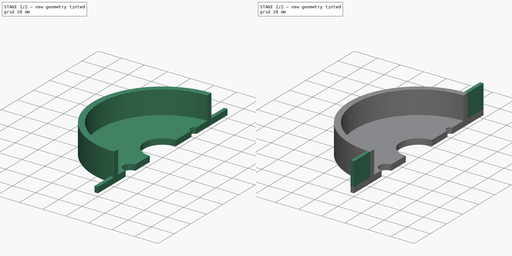
[diagram: build sequence overview — one tinted view per stage of 2, left to right]
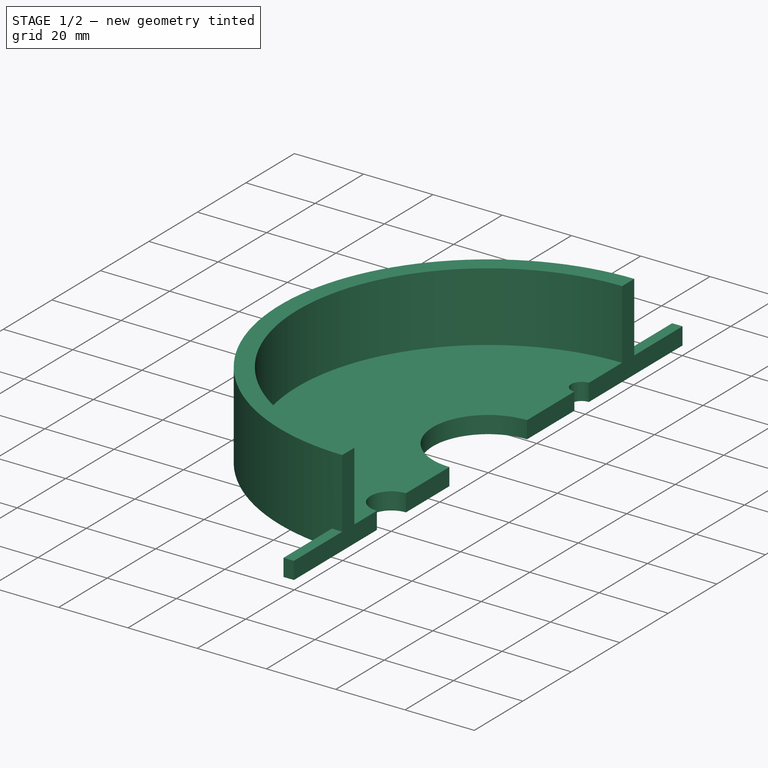
[diagram: stage 1 of 2 — iso view after this stage's code; geometry added in this stage tinted green]
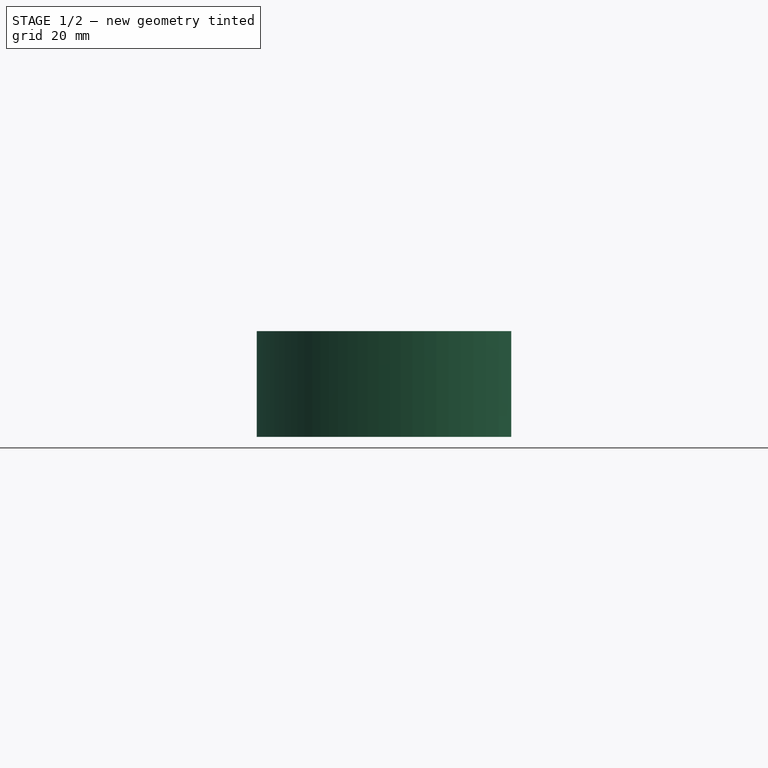
[diagram: stage 1 of 2 — front view after this stage's code; geometry added in this stage tinted green]
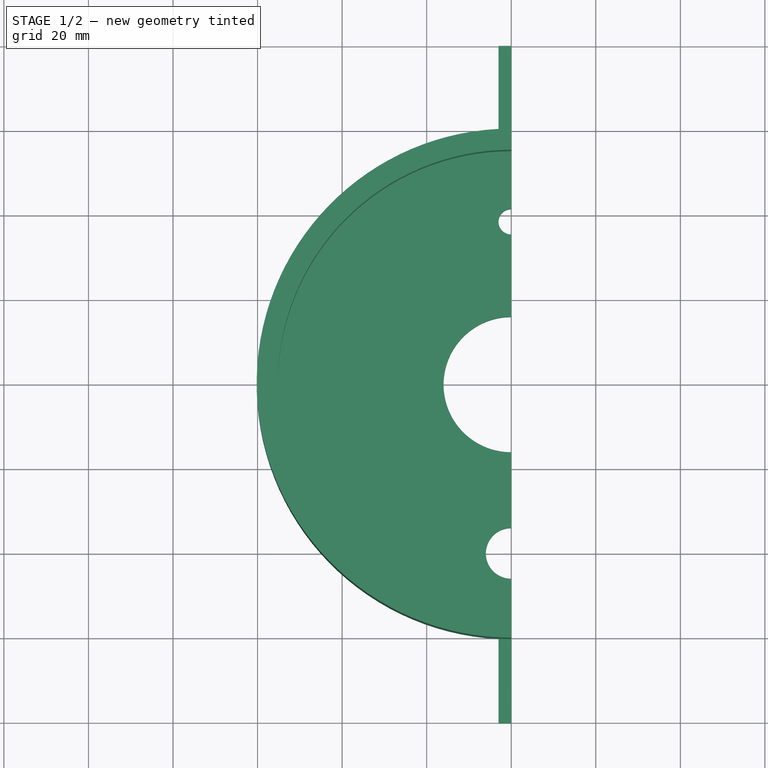
[diagram: stage 1 of 2 — top view after this stage's code; geometry added in this stage tinted green]
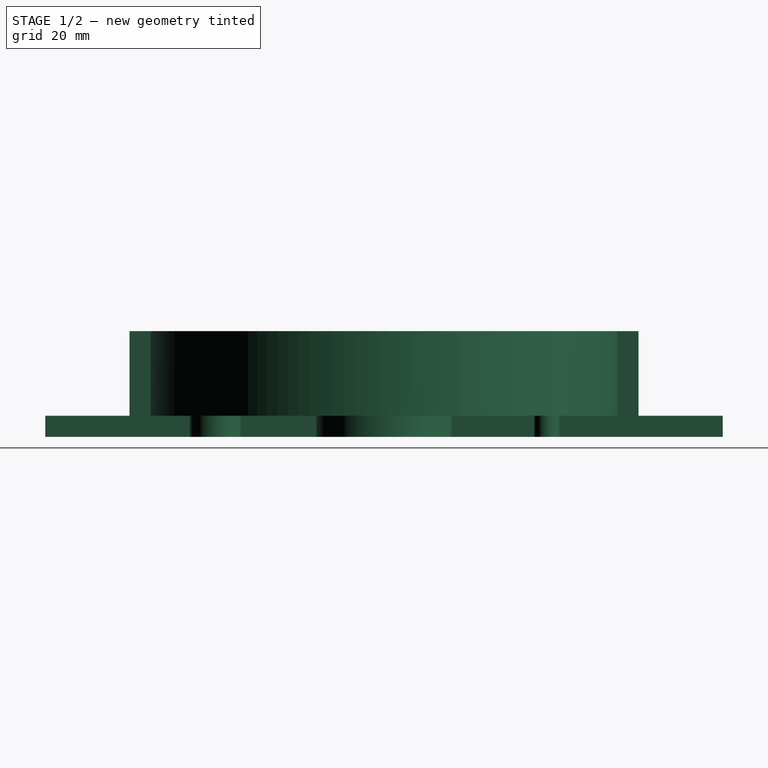
[diagram: stage 1 of 2 — right view after this stage's code; geometry added in this stage tinted green]
FCSTD DOCUMENT  (FreeCAD 1.1R14555 (Git shallow))
Label: Cap 110
License: All rights reserved
LicenseURL: https://en.wikipedia.org/wiki/All_rights_reserved
objects: PartDesign::Pad×4, Sketcher::SketchObject×3, App::Point×1, PartDesign::Body×1
note: 19 computed .brp shape members not serialized (recipe doc carries the construction recipe); baked Part::Feature solids carry a one-line shape summary decoded from their .brp

FEATURE [App::Point] Origin001
  Role = Origin
FEATURE [Sketcher::SketchObject] Sketch
  ArcFitTolerance = 1e-06
  AttachmentSupport = -> [Origin]
  ExternalTypes = [0]
  FullyConstrained = false
  MakeInternals = false
  MapMode = 5
  expr: Constraints[1] = 110 / 2 + 0.2 + 5
  expr: Constraints[5] = 32 / 2
  sketch-geometry (12):
    g0: ArcOfCircle CenterX=0 CenterY=0 CenterZ=0 NormalX=0 NormalY=0 NormalZ=1 AngleXU=0 Radius=60.2 StartAngle=1.62065 EndAngle=4.66253
    g1: ArcOfCircle CenterX=0 CenterY=0 CenterZ=0 NormalX=0 NormalY=0 NormalZ=1 AngleXU=0 Radius=16 StartAngle=1.5708 EndAngle=4.71239
    g2: LineSegment StartX=-6e-16 StartY=35.5076 StartZ=0 EndX=1e-15 EndY=16 EndZ=0
    g3: LineSegment StartX=-2.9e-15 StartY=-16 StartZ=0 EndX=4e-16 EndY=-33.9212 EndZ=0
    g4: LineSegment StartX=-3 StartY=-60.1252 StartZ=0 EndX=-3 EndY=-80.1252 EndZ=0
    g5: LineSegment StartX=-3 StartY=-80.1252 StartZ=0 EndX=0 EndY=-80.1252 EndZ=0
    g6: LineSegment StartX=-1.1e-15 StartY=-45.9212 StartZ=0 EndX=0 EndY=-80.1252 EndZ=0
    g7: LineSegment StartX=-3 StartY=60.1252 StartZ=0 EndX=-3 EndY=80.1252 EndZ=0
    g8: LineSegment StartX=-3 StartY=80.1252 StartZ=0 EndX=0 EndY=80.1252 EndZ=0
    g9: LineSegment StartX=0 StartY=80.1252 StartZ=0 EndX=2e-16 EndY=41.5076 EndZ=0
    g10: ArcOfCircle CenterX=0 CenterY=38.5076 CenterZ=0 NormalX=0 NormalY=0 NormalZ=1 AngleXU=0 Radius=3 StartAngle=1.5708 EndAngle=4.71239
    g11: ArcOfCircle CenterX=0 CenterY=-39.9212 CenterZ=0 NormalX=0 NormalY=0 NormalZ=1 AngleXU=0 Radius=6 StartAngle=1.5708 EndAngle=4.71239
  constraints (36):
    c: Coincident(g0,g-1)
    c: Radius(g0) = 60.2
    c: Coincident(g1,g0)
    c: PointOnObject(g1,g-2)
    c: PointOnObject(g1,g-2)
    c: Radius(g1) = 16
    c: PointOnObject(g2,g-2)
    c: Coincident(g2,g1)
    c: Coincident(g3,g1)
    c: Coincident(g4,g5)
    c: PointOnObject(g5,g-2)
    c: Coincident(g4,g0)
    c: Vertical(g4)
    c: Horizontal(g5)
    c: DistanceY(g4,g4) = 20
    c: Distance(g5,g5) = 3
    c: Coincident(g6,g5)
    c: Coincident(g7,g8)
    c: Vertical(g7)
    c: Horizontal(g8)
    c: Distance(g8,g8) = 3
    c: Coincident(g0,g7)
    c: PointOnObject(g8,g-2)
    c: DistanceY(g7,g7) = 20
    c: Coincident(g9,g8)
    c: PointOnObject(g9,g-2)
    c: PointOnObject(g6,g-2)
    c: PointOnObject(g3,g-2)
    c: PointOnObject(g10,g-2)
    c: Coincident(g10,g9)
    c: Coincident(g10,g2)
    c: PointOnObject(g11,g-2)
    c: Coincident(g11,g3)
    c: Coincident(g11,g6)
    c: Radius(g11) = 6
    c: Radius(g10) = 3
FEATURE [PartDesign::Pad] Pad
  Direction = (0,0,1)
  Length = 5
  Length2 = 10
  Profile = -> Sketch
  ReferenceAxis = -> Sketch [N_Axis]
  SideType = 0
  Suppressed = false
  Type = 0
  Type2 = 0
FEATURE [Sketcher::SketchObject] Sketch001
  ArcFitTolerance = 1e-06
  AttachmentSupport = -> [Pad]
  ExternalTypes = [0]
  FullyConstrained = false
  MakeInternals = false
  MapMode = 5
  Placement = pos=(0,0,5) rot=(0,0,1;0rad)
  sketch-geometry (4):
    g0: ArcOfCircle CenterX=0 CenterY=-3.3e-15 CenterZ=0 NormalX=0 NormalY=0 NormalZ=1 AngleXU=0 Radius=55.2 StartAngle=1.5708 EndAngle=4.71239
    g1: LineSegment StartX=3.4e-15 StartY=55.2 StartZ=0 EndX=1.96731e-05 EndY=60.2 EndZ=0
    g2: LineSegment StartX=-1.01e-14 StartY=-55.2 StartZ=0 EndX=1.18084e-06 EndY=-60.2 EndZ=0
    g3: ArcOfCircle CenterX=0 CenterY=-3.3e-15 CenterZ=0 NormalX=0 NormalY=0 NormalZ=1 AngleXU=0 Radius=60.2 StartAngle=1.5708 EndAngle=4.71239
  constraints (8):
    c: PointOnObject(g0,g-2)
    c: PointOnObject(g0,g-2)
    c: Coincident(g1,g0)
    c: Coincident(g2,g0)
    c: DistanceY(g1,g1) = 5
    c: Coincident(g3,g0)
    c: Coincident(g3,g1)
    c: Coincident(g3,g2)
FEATURE [PartDesign::Pad] Pad001
  BaseFeature = -> Pad
  Direction = (0,0,1)
  Length = 20
  Length2 = 10
  Profile = -> Sketch001
  ReferenceAxis = -> Sketch001 [N_Axis]
  SideType = 0
  Suppressed = false
  Type = 0
  Type2 = 0
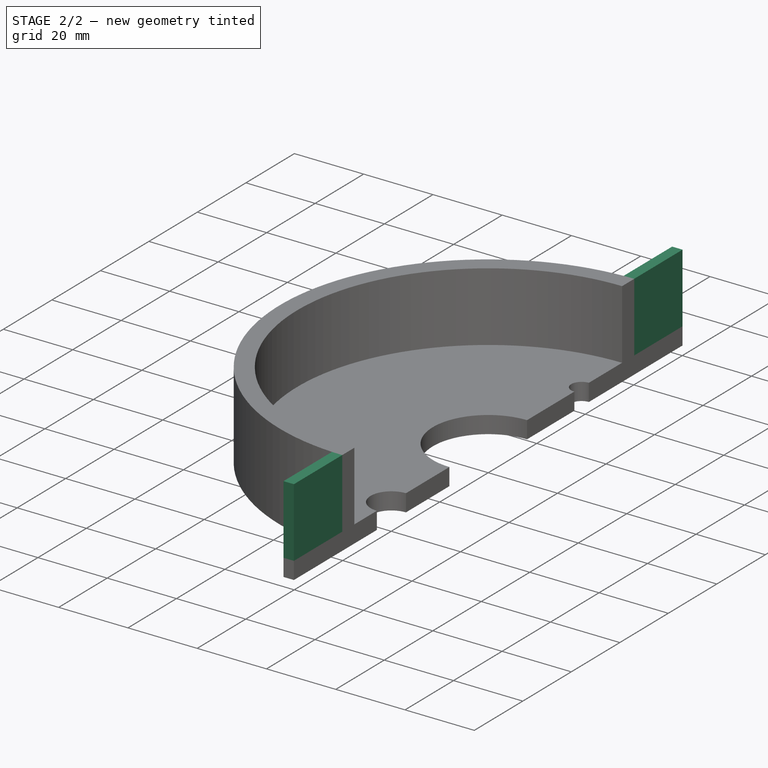
[diagram: stage 2 of 2 — iso view after this stage's code; geometry added in this stage tinted green]
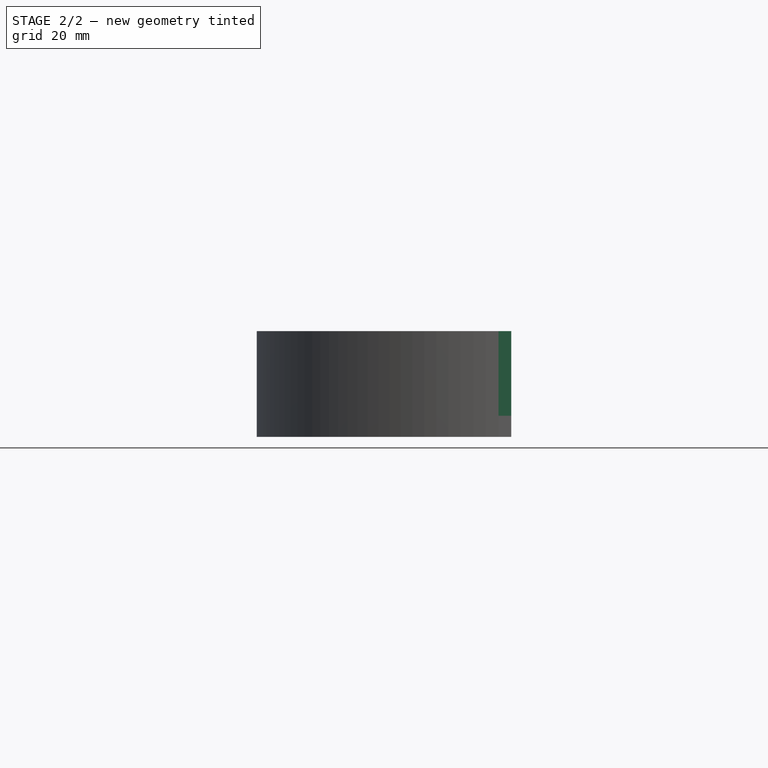
[diagram: stage 2 of 2 — front view after this stage's code; geometry added in this stage tinted green]
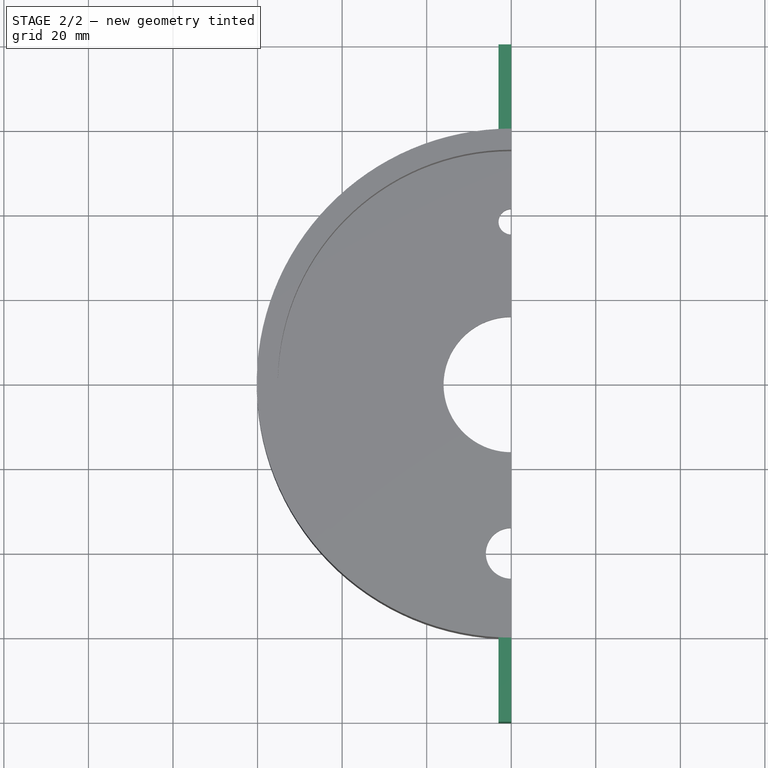
[diagram: stage 2 of 2 — top view after this stage's code; geometry added in this stage tinted green]
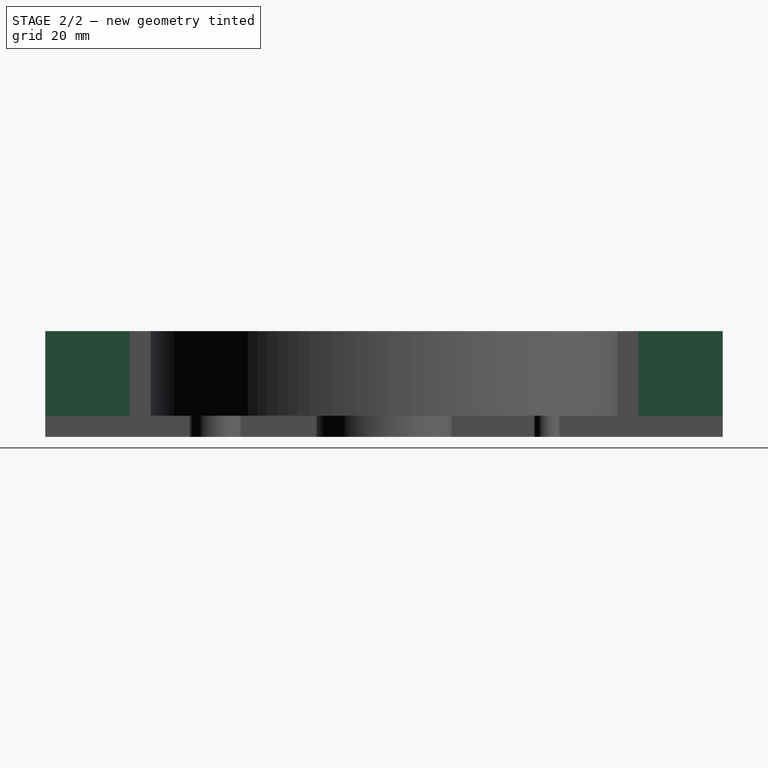
[diagram: stage 2 of 2 — right view after this stage's code; geometry added in this stage tinted green]
FEATURE [PartDesign::Pad] Pad002
  BaseFeature = -> Pad001
  Direction = (0,0,1)
  Length = 10
  Length2 = 10
  Profile = -> Pad001 [Face9]
  SideType = 0
  Suppressed = false
  Type = 3
  Type2 = 0
  UpToFace = -> Pad001 [Face19]
FEATURE [PartDesign::Pad] Pad003
  BaseFeature = -> Pad002
  Direction = (0,0,1)
  Length = 10
  Length2 = 10
  Profile = -> Pad002 [Face7]
  SideType = 0
  Suppressed = false
  Type = 3
  Type2 = 0
  UpToFace = -> Pad002 [Face17]
FEATURE [Sketcher::SketchObject] Sketch002
  ArcFitTolerance = 1e-06
  AttachmentSupport = -> [Pad003]
  ExternalGeometry = -> [Pad003]
  ExternalTypes = [0,0]
  FullyConstrained = true
  MakeInternals = false
  MapMode = 5
  Placement = pos=(-3,0,0) rot=(0.57735,-0.57735,-0.57735;2.0944rad)
  sketch-geometry (1):
    g0: Circle CenterX=70.1252 CenterY=15 CenterZ=0 NormalX=0 NormalY=0 NormalZ=1 AngleXU=0 Radius=4.2
  constraints (2):
    c: Diameter(g0) = 8.4
    c: Symmetric(g-4,g-3,g0)
FEATURE [PartDesign::Body] Body
  AllowCompound = false
  Group = -> [Sketch,Pad,Sketch001,Pad001,Pad002,Pad003,Sketch002]
  Origin = -> Origin
  Tip = -> Pad003
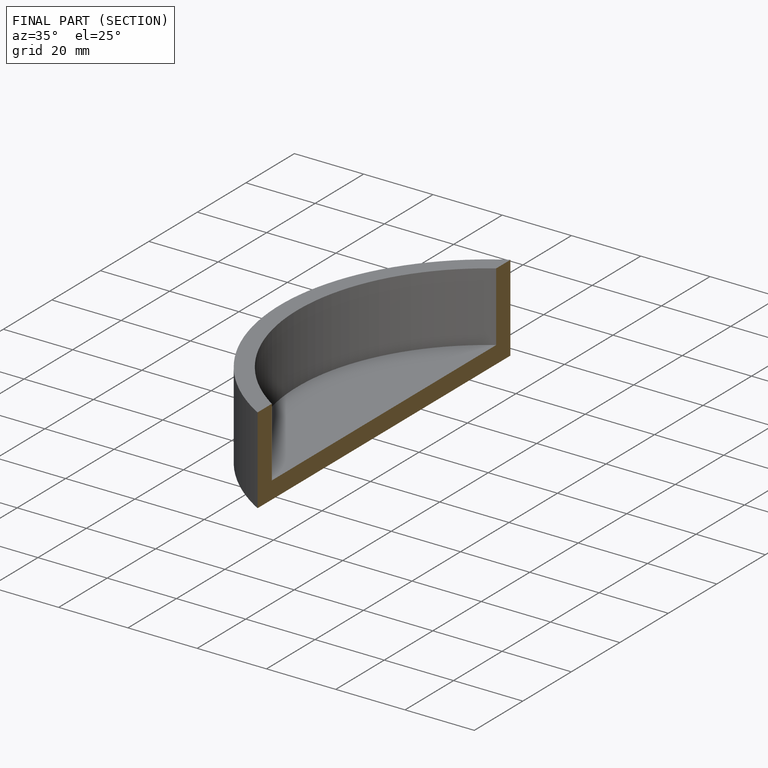
[diagram: finished part — half-section view (interior)]
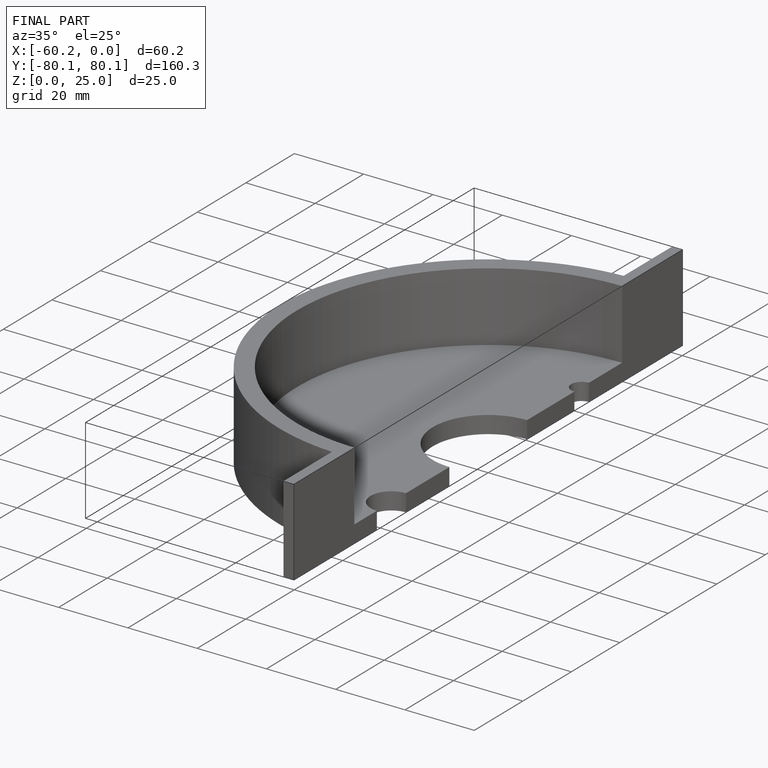
[diagram: finished part — iso view with bounding-box wireframe]
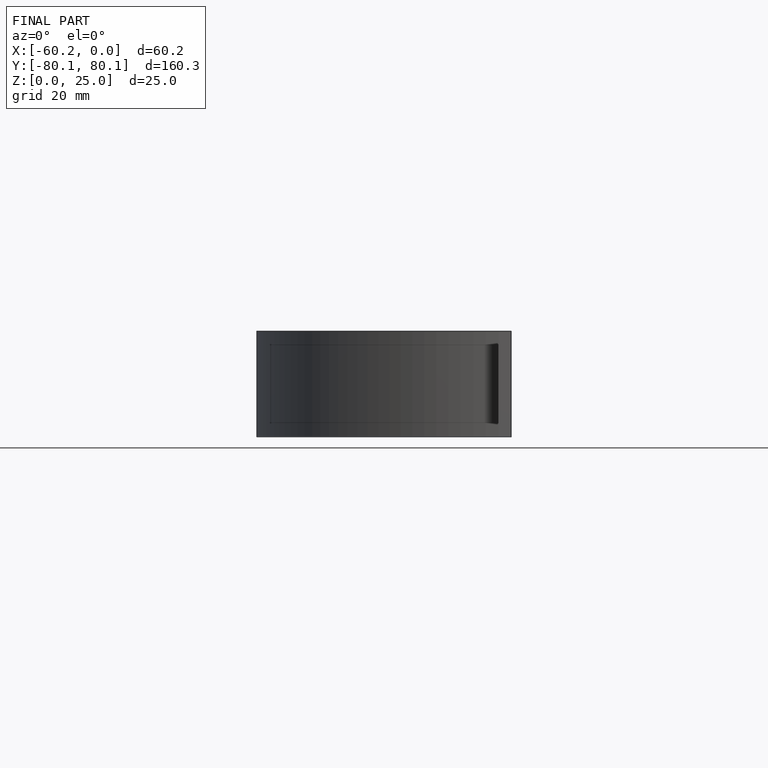
[diagram: finished part — front view with bounding-box wireframe]
